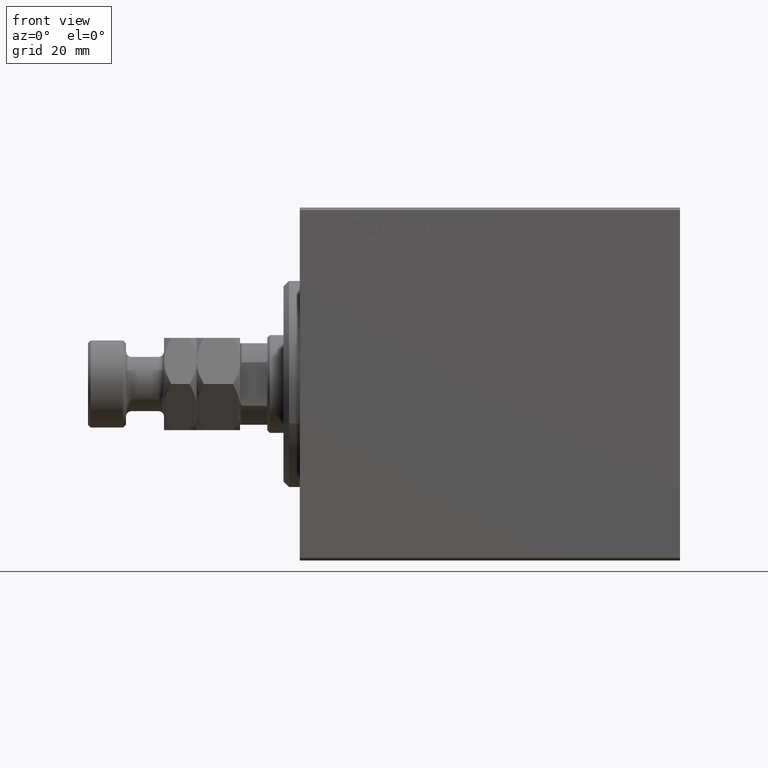
[diagram: clean part render]
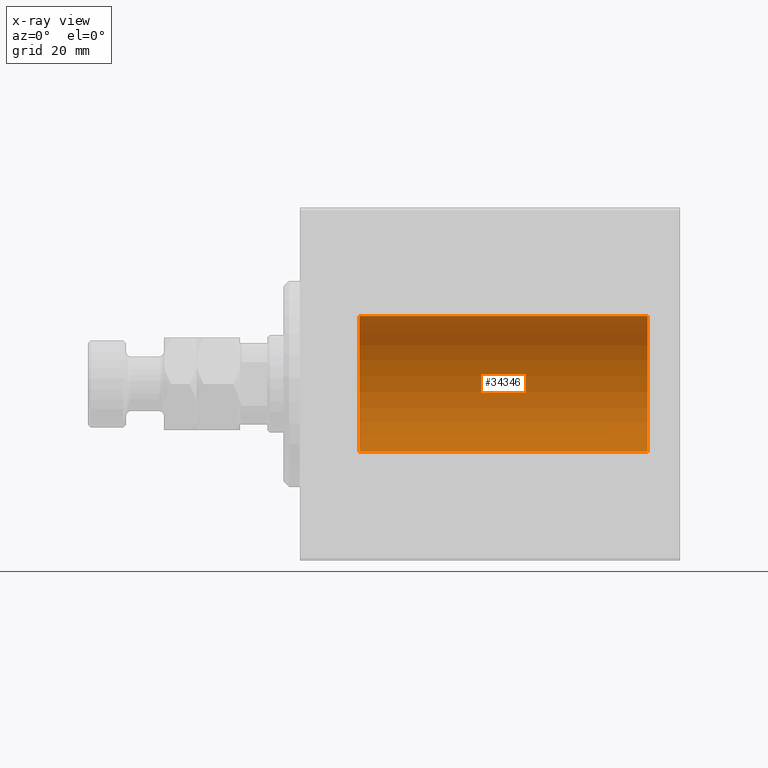
[diagram: x-ray — body ghosted, one internal face saturated and labeled with its STEP entity id]
A machine part, front view, then the same camera in x-ray: the body is ghosted and one INTERNAL B-rep face — a face not visible from any outside direction — is saturated and labeled: STEP entity #34346.
In plain terms, the highlighted cylindrical surface (partial cylindrical patch) has radius 12.5 mm, axis along (-1, -0, -0).
Its self-contained STEP definition (entity closure, byte-faithful):
#165 = LINE ( 'NONE', #24260, #10552 ) ;
#329 = VERTEX_POINT ( 'NONE', #3792 ) ;
#1706 = EDGE_CURVE ( 'NONE', #5503, #30556, #165, .T. ) ;
#2899 = CARTESIAN_POINT ( 'NONE',  ( 64.00000000000000000, 0.000000000000000000, 12.50000000000000000 ) ) ;
#3617 = EDGE_CURVE ( 'NONE', #17010, #329, #13768, .T. ) ;
#3792 = CARTESIAN_POINT ( 'NONE',  ( 10.99999999999999645, 0.000000000000000000, 12.50000000000000000 ) ) ;
#5037 = AXIS2_PLACEMENT_3D ( 'NONE', #11602, #25608, #39647 ) ;
#5503 = VERTEX_POINT ( 'NONE', #34286 ) ;
#6370 = DIRECTION ( 'NONE',  ( -1.000000000000000000, 0.000000000000000000, 0.000000000000000000 ) ) ;
#6597 = CARTESIAN_POINT ( 'NONE',  ( 10.99999999999999645, 0.000000000000000000, 0.000000000000000000 ) ) ;
#7384 = DIRECTION ( 'NONE',  ( 0.000000000000000000, 0.000000000000000000, 1.000000000000000000 ) ) ;
#10552 = VECTOR ( 'NONE', #42455, 1000.000000000000000 ) ;
#11602 = CARTESIAN_POINT ( 'NONE',  ( 64.00000000000000000, 0.000000000000000000, 0.000000000000000000 ) ) ;
#12806 = DIRECTION ( 'NONE',  ( 0.000000000000000000, 0.000000000000000000, 1.000000000000000000 ) ) ;
#13768 = LINE ( 'NONE', #20425, #42919 ) ;
#14983 = CIRCLE ( 'NONE', #42124, 12.50000000000000000 ) ;
#15041 = FACE_OUTER_BOUND ( 'NONE', #43202, .T. ) ;
#17010 = VERTEX_POINT ( 'NONE', #2899 ) ;
#20425 = CARTESIAN_POINT ( 'NONE',  ( 64.00000000000000000, 0.000000000000000000, 12.50000000000000000 ) ) ;
#23500 = CARTESIAN_POINT ( 'NONE',  ( 10.99999999999999645, 1.530808498934191521E-15, -12.50000000000000000 ) ) ;
#24260 = CARTESIAN_POINT ( 'NONE',  ( 64.00000000000000000, 1.530808498934191521E-15, -12.50000000000000000 ) ) ;
#25608 = DIRECTION ( 'NONE',  ( -1.000000000000000000, -0.000000000000000000, -0.000000000000000000 ) ) ;
#30556 = VERTEX_POINT ( 'NONE', #23500 ) ;
#32302 = EDGE_CURVE ( 'NONE', #329, #30556, #43920, .T. ) ;
#34286 = CARTESIAN_POINT ( 'NONE',  ( 64.00000000000000000, 1.530808498934191521E-15, -12.50000000000000000 ) ) ;
#34346 = ADVANCED_FACE ( 'NONE', ( #15041 ), #43106, .F. ) ;
#34431 = ORIENTED_EDGE ( 'NONE', *, *, #32302, .T. ) ;
#34912 = ORIENTED_EDGE ( 'NONE', *, *, #3617, .T. ) ;
#35192 = DIRECTION ( 'NONE',  ( -1.000000000000000000, 0.000000000000000000, 0.000000000000000000 ) ) ;
#35258 = ORIENTED_EDGE ( 'NONE', *, *, #44769, .F. ) ;
#39647 = DIRECTION ( 'NONE',  ( 0.000000000000000000, 0.000000000000000000, 1.000000000000000000 ) ) ;
#42124 = AXIS2_PLACEMENT_3D ( 'NONE', #42322, #35192, #7384 ) ;
#42322 = CARTESIAN_POINT ( 'NONE',  ( 64.00000000000000000, 0.000000000000000000, 0.000000000000000000 ) ) ;
#42455 = DIRECTION ( 'NONE',  ( -1.000000000000000000, -0.000000000000000000, -0.000000000000000000 ) ) ;
#42919 = VECTOR ( 'NONE', #44817, 1000.000000000000000 ) ;
#42991 = ORIENTED_EDGE ( 'NONE', *, *, #1706, .F. ) ;
#43106 = CYLINDRICAL_SURFACE ( 'NONE', #5037, 12.50000000000000000 ) ;
#43202 = EDGE_LOOP ( 'NONE', ( #42991, #35258, #34912, #34431 ) ) ;
#43920 = CIRCLE ( 'NONE', #45406, 12.50000000000000000 ) ;
#44769 = EDGE_CURVE ( 'NONE', #17010, #5503, #14983, .T. ) ;
#44817 = DIRECTION ( 'NONE',  ( -1.000000000000000000, -0.000000000000000000, -0.000000000000000000 ) ) ;
#45406 = AXIS2_PLACEMENT_3D ( 'NONE', #6597, #6370, #12806 ) ;